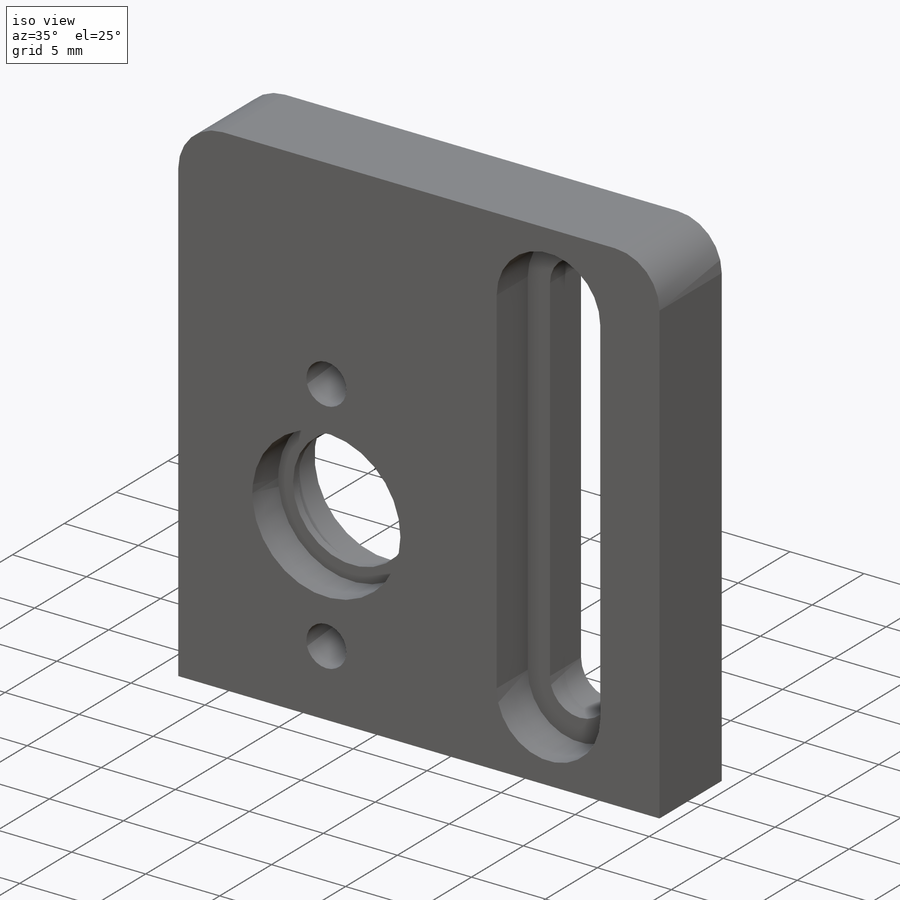
[diagram: iso view]
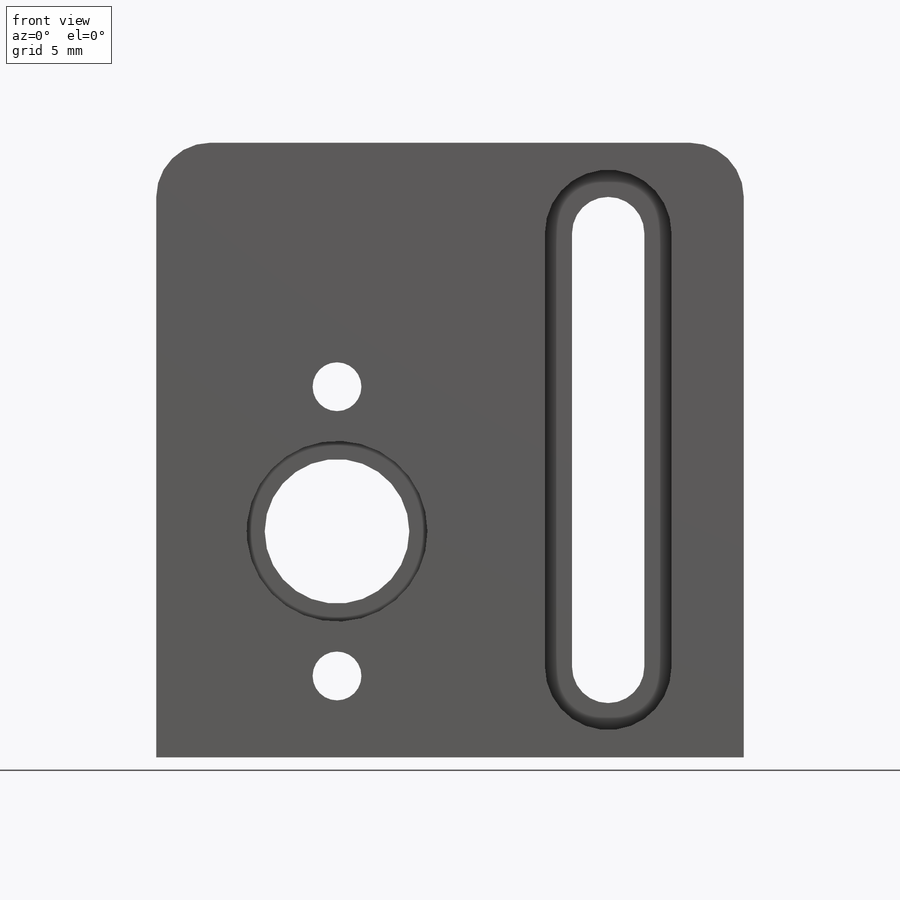
[diagram: front view]
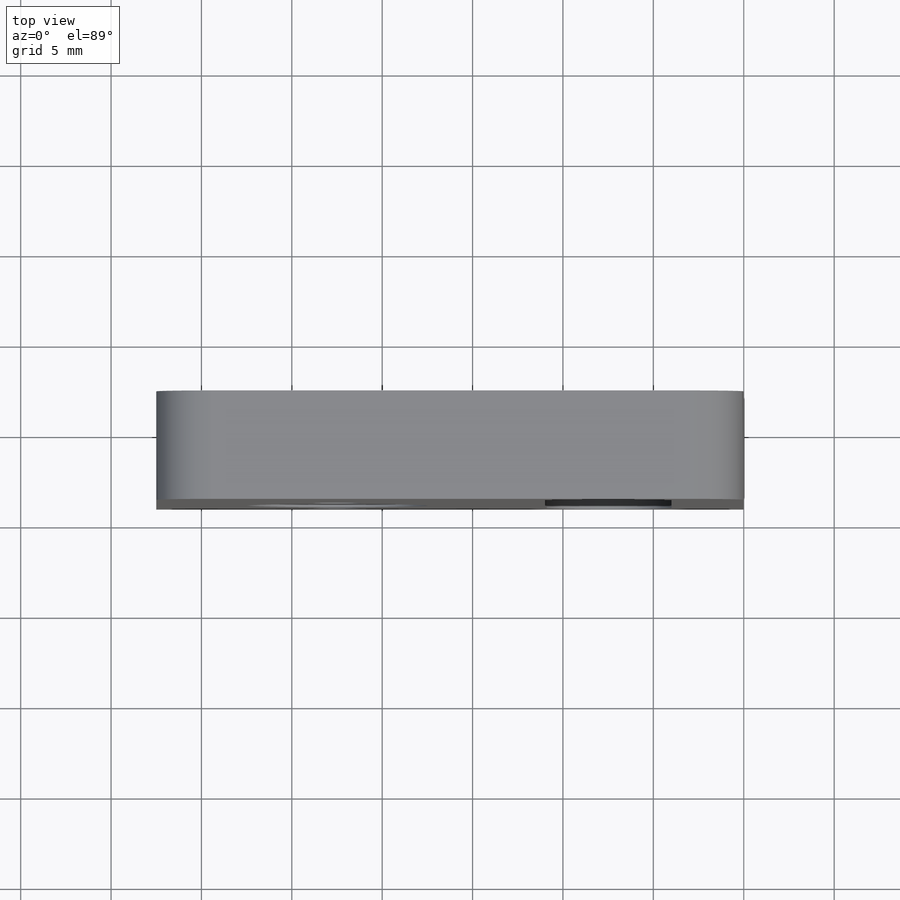
[diagram: top view]
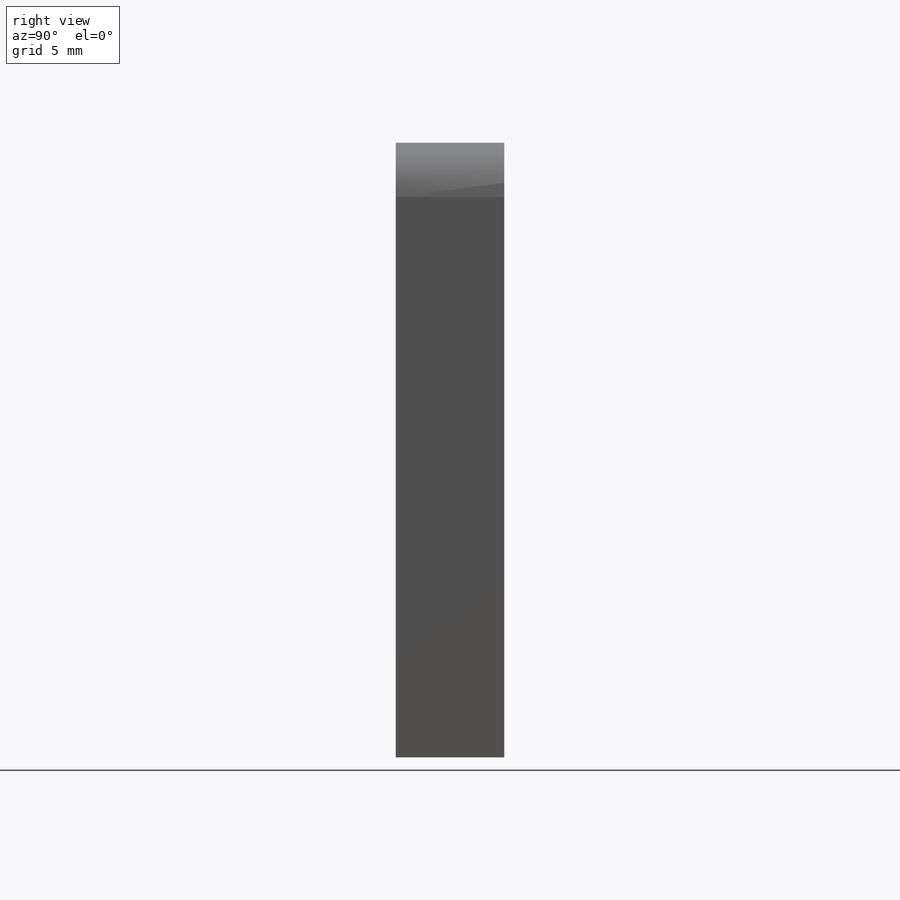
[diagram: right view]
SOLIDWORKS PART (.sldprt)
format: sldprt  version: not decoded by parser v0  size: 1,079,296 bytes
history: native  units: mm
features: sketch x14, cut_extrude x7, thread x5, plane x3, fillet x3, hole x2, material x1, extrude x1, mirror x1, delete_body x1 (+9 scaffold rows collapsed)
feature tree (47):
  scaffold x9  (default folders/planes/origin — collapsed)
  material  "Material <nicht festgelegt>"
  plane  "Ebene vorne"
  plane  "Ebene oben"
  plane  "Ebene rechts"
  sketch  "Skizze1"  dims[D3=21.0mm D4=18.0mm D7=10.0mm D8=8.0mm D9=16.0mm D1=65.0mm D2=34.0mm D5=15.5mm D6=12.0mm D10=10.0mm D11=12.5mm D12=21.5mm]
  extrude  "Aufsatz-Linear austragen1"  Depth=6mm
  cut_extrude  "Schnitt-Linear austragen1"  [1 undecoded]
  sketch  "Skizze1<3>"  dims[D1=5.0mm]
  cut_extrude  "Schnitt-Linear austragen2"  [1 undecoded]
  sketch  "Skizze1<4>"  dims[D1=3.0mm]
  sketch  "Skizze11"  dims[c1.D1=4.0mm c1.D2=10.0mm c1.D3=5.0mm c1.D4=25.0mm c2.D2=5.0mm c2.D5=7.0mm]
  cut_extrude  "Schnitt-Linear austragen4"  [1 undecoded]
  cut_extrude  "Schnitt-Linear austragen5"  [1 undecoded]
  sketch  "Skizze11<4>"  dims[D1=3.0mm]
  fillet  "Verrundung1"  Radius=3mm
  hole  "M3 Gewindebohrung1"  Diameter=2.5mm Depth=7mm
  sketch  "Skizze4"  dims[c1.D1=40.0mm c1.D2=3.5mm c2.D1=12.0mm c2.D2=3.5mm c2.D3=~5.500735mm]
  sketch  "Skizze5"  dims[hole-wizard template sketch: 47 standard entries collapsed; hole parameters kept: c15.Bohrungstiefe=7.0mm c15.D3=~14.816244mm c15.Spitzenwinkel=118.0deg]
  thread  "Bohrungsgewinde3"  Diameter=5mm  [1 undecoded]
  thread  "Bohrungsgewinde4"  Diameter=5mm  [1 undecoded]
  thread  "Bohrungsgewinde5"  Diameter=5mm  [1 undecoded]
  thread  "Bohrungsgewinde6"  Diameter=5mm  [1 undecoded]
  hole  "M3 Gewindebohrung2"  Diameter=2.5mm Depth=7.5mm
  sketch  "Skizze13"  dims[D1=12.0mm]
  sketch  "Skizze12"  dims[hole-wizard template sketch: 47 standard entries collapsed; hole parameters kept: c15.Bohrungstiefe=7.5mm c15.D3=~14.816244mm c15.Spitzenwinkel=118.0deg]
  thread  "Bohrungsgewinde7"  Diameter=5mm  [1 undecoded]
  mirror  "Spiegeln1"
  delete_body  "Körper-Löschen1"
  sketch  "Skizze6"  dims[D1=1.0mm]
  cut_extrude  "Nur Abtrieb"  [1 undecoded]
  fillet  "Verrundung2"  Radius=3mm
  cut_extrude  "Nur Antrieb"  [1 undecoded]
  sketch  "Skizze6<3>"
  fillet  "Verrundung3"  Radius=3mm
  sketch  "Skizze7"  dims[D1=10.0mm]
  cut_extrude  "Schnitt-Linear austragen3"  Depth=2.5mm
  sketch  "Skizze9"  dims[c1.D1=8.0mm c2.D1=120.0deg c2.D2=8.0mm c3.D2=60.0deg]
  sketch  "Skizze10"  dims[hole-wizard template sketch: 41 standard entries collapsed; hole parameters kept: c12.Bohrerdurchmesser=2.7mm c12.Bohrungstiefe=6.0mm c12.Senkdurchmesser2=5.5mm c12.Senktiefe2=1.8mm]
decode coverage: 25 of 34 modeling features carry decoded parameters
note: ~ marks probable driven/reference dimensions
note: 11 parameter values undecoded
summary: no parameter record found for 6 features
note: suppression state not decoded; provenance and decode notes live in map.json
